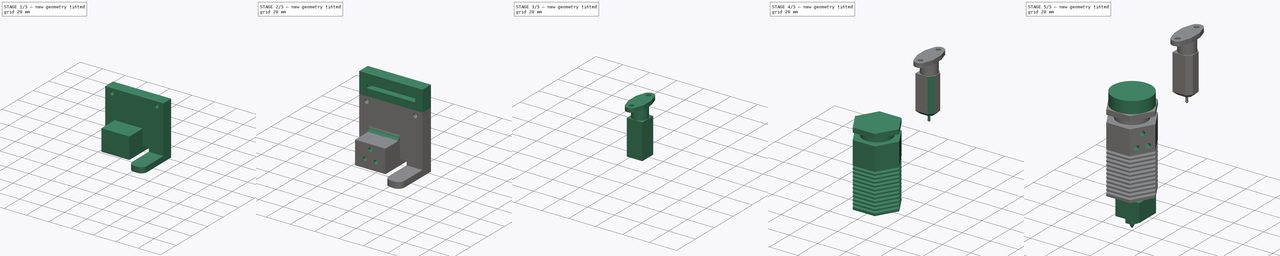
[diagram: build sequence overview — one tinted view per stage of 5, left to right]
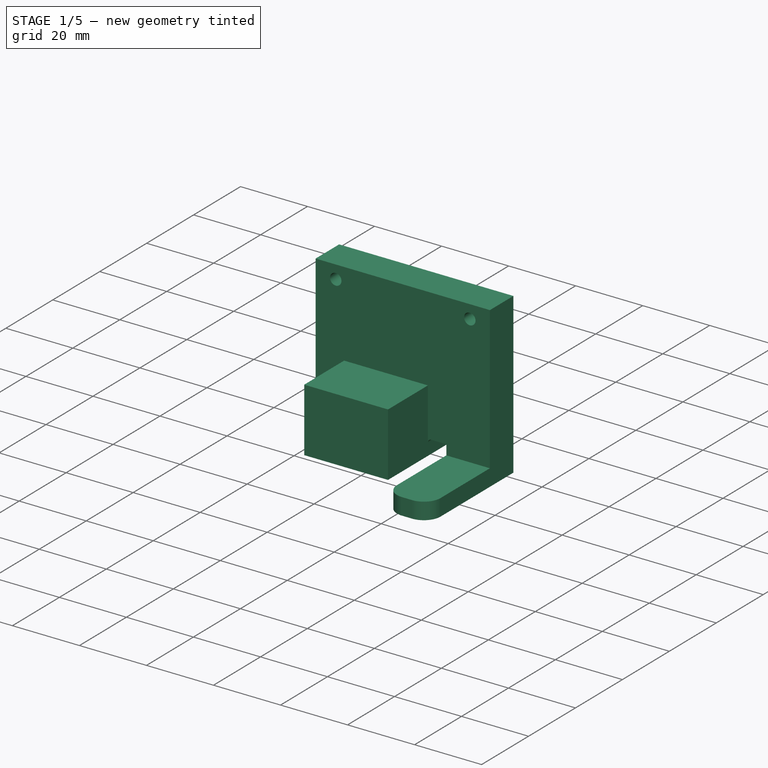
[diagram: stage 1 of 5 — iso view after this stage's code; geometry added in this stage tinted green]
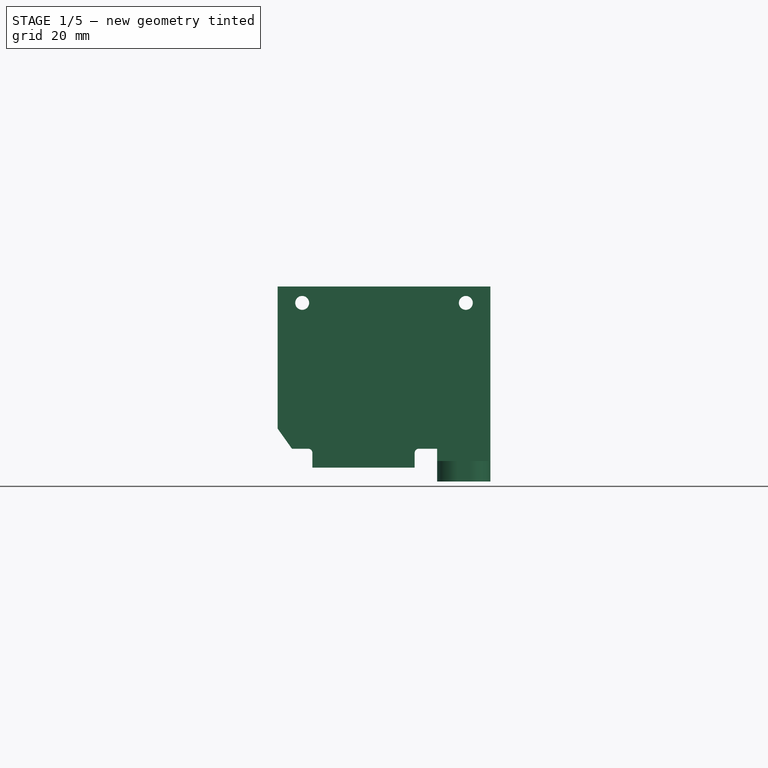
[diagram: stage 1 of 5 — front view after this stage's code; geometry added in this stage tinted green]
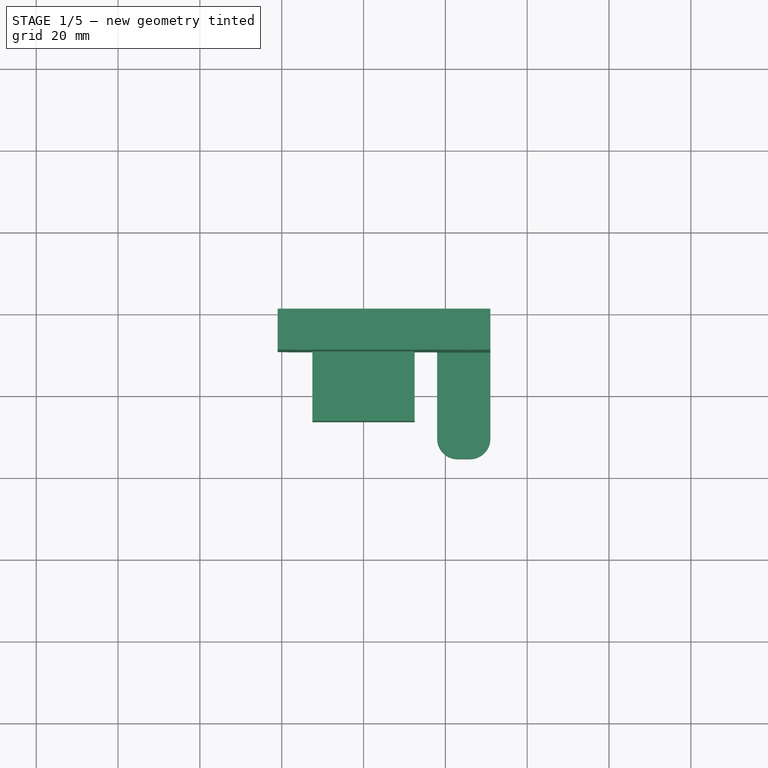
[diagram: stage 1 of 5 — top view after this stage's code; geometry added in this stage tinted green]
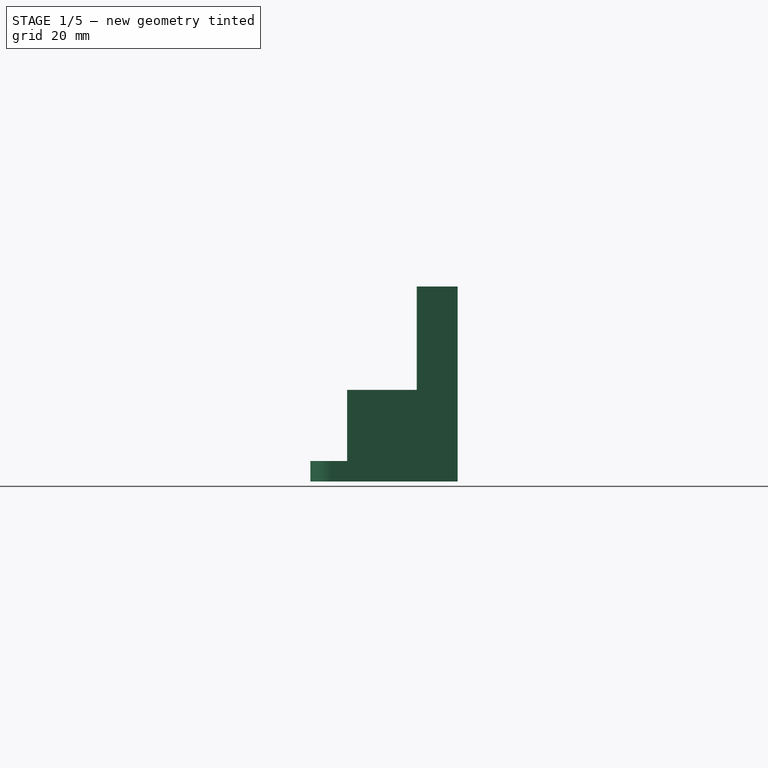
[diagram: stage 1 of 5 — right view after this stage's code; geometry added in this stage tinted green]
FCSTD DOCUMENT  (FreeCAD 0.20R)
Label: hotend
License: All rights reserved
LicenseURL: http://en.wikipedia.org/wiki/All_rights_reserved
objects: Sketcher::SketchObject×28, PartDesign::Pad×15, PartDesign::Pocket×11, PartDesign::Fillet×4, PartDesign::Body×3, PartDesign::Chamfer×3, PartDesign::LinearPattern×2, PartDesign::Revolution×2, Part::Feature×2, PartDesign::ShapeBinder×2, PartDesign::SubShapeBinder×1, PartDesign::Point×1, PartDesign::Plane×1
note: 110 computed .brp shape members not serialized (recipe doc carries the construction recipe); baked Part::Feature solids carry a one-line shape summary decoded from their .brp

FEATURE [PartDesign::Body] Body  label="Hotend"
  Group = -> [Sketch,Pad,Sketch001,Pocket,Sketch002,Pocket001,LinearPattern,Sketch003,Pocket002,Sketch004,Sketch005,Pocket003,Pocket004,Sketch006,Pad001,Sketch007,Pad002,Sketch008,Pad003,Sketch009,Revolution,Sketch010,Pad004]
  Origin = -> Origin
  Placement = pos=(0,0,74.4) rot=(0,0,1;0rad)
  Tip = -> Pad004
FEATURE [Part::Feature] Body001  label="Carriage"
  Placement = pos=(5,40.65,64.65) rot=(0,0.707107,0.707107;3.14159rad)
  shape: bbox 54.15 x 20 x 85.15 mm, 245 faces (baked)
FEATURE [PartDesign::ShapeBinder] ShapeBinder
  Placement = pos=(5,40.65,64.65) rot=(0,0.707107,0.707107;3.14159rad)
  Support = -> [Body001]
  TraceSupport = false
FEATURE [Sketcher::SketchObject] Sketch011
  ExternalGeometry = -> [ShapeBinder]
  FullyConstrained = true
  MapMode = 5
  Placement = pos=(5,40.65,64.65) rot=(0,-0.707107,0.707107;3.14159rad)
  Support = -> [ShapeBinder]
  sketch-geometry (6):
    g0: LineSegment StartX=-26 StartY=-27 StartZ=0 EndX=-26 EndY=9.15 EndZ=0
    g1: LineSegment StartX=-26 StartY=9.15 StartZ=0 EndX=-22.5 EndY=12.65 EndZ=0
    g2: LineSegment StartX=-22.5 StartY=12.65 StartZ=0 EndX=22.5 EndY=12.65 EndZ=0
    g3: LineSegment StartX=22.5 StartY=12.65 StartZ=0 EndX=26 EndY=7.72233 EndZ=0
    g4: LineSegment StartX=26 StartY=7.72233 StartZ=0 EndX=26 EndY=-27 EndZ=0
    g5: LineSegment StartX=26 StartY=-27 StartZ=0 EndX=-26 EndY=-27 EndZ=0
  constraints (12):
    c: Coincident(g-4,g0)
    c: Coincident(g0,g-4)
    c: Coincident(g0,g1)
    c: Coincident(g1,g-3)
    c: Coincident(g1,g2)
    c: Coincident(g2,g-3)
    c: Coincident(g2,g3)
    c: Coincident(g3,g-5)
    c: Coincident(g3,g4)
    c: Coincident(g4,g-5)
    c: Coincident(g4,g5)
    c: Coincident(g5,g0)
FEATURE [PartDesign::Pad] Pad005
  Direction = (1,1,1)
  Length = 10
  Length2 = 100
  Placement = pos=(5,40.65,64.65) rot=(0,0.707107,0.707107;3.14159rad)
  Profile = -> Sketch011
  Type = 0
FEATURE [Sketcher::SketchObject] Sketch012
  ExternalGeometry = -> [ShapeBinder]
  FullyConstrained = true
  MapMode = 5
  Placement = pos=(5,40.65,64.65) rot=(0,0.707107,0.707107;3.14159rad)
  Support = -> [Pad005]
  sketch-geometry (2):
    g0: Circle CenterX=-20 CenterY=23 CenterZ=0 NormalX=0 NormalY=0 NormalZ=1 AngleXU=0 Radius=1.7
    g1: Circle CenterX=20 CenterY=23 CenterZ=0 NormalX=0 NormalY=0 NormalZ=1 AngleXU=0 Radius=1.7
  constraints (4):
    c: Coincident(g0,g-3)
    c: Coincident(g1,g-4)
    c: Equal(g-4,g1)
    c: Equal(g1,g0)
FEATURE [PartDesign::Pocket] Pocket005
  BaseFeature = -> Pad005
  Direction = (1,1,1)
  Length = 5
  Length2 = 100
  Placement = pos=(5,40.65,64.65) rot=(0,0.707107,0.707107;3.14159rad)
  Profile = -> Sketch012
  Type = 1
FEATURE [Sketcher::SketchObject] Sketch013
  ExternalGeometry = -> [Pocket005]
  FullyConstrained = true
  MapMode = 5
  Placement = pos=(5,30.65,64.65) rot=(0,-0.707107,0.707107;3.14159rad)
  Support = -> [Pocket005]
  sketch-geometry (4):
    g0: LineSegment StartX=-26 StartY=20.65 StartZ=0 EndX=-13 EndY=20.65 EndZ=0
    g1: LineSegment StartX=-13 StartY=20.65 StartZ=0 EndX=-13 EndY=9.15 EndZ=0
    g2: LineSegment StartX=-13 StartY=9.15 StartZ=0 EndX=-26 EndY=9.15 EndZ=0
    g3: LineSegment StartX=-26 StartY=9.15 StartZ=0 EndX=-26 EndY=20.65 EndZ=0
  constraints (11):
    c: Coincident(g0,g1)
    c: Coincident(g1,g2)
    c: Coincident(g2,g3)
    c: Coincident(g3,g0)
    c: Horizontal(g0)
    c: Horizontal(g2)
    c: Vertical(g1)
    c: Vertical(g3)
    c: DistanceX(g2,g2) = 13
    c: Distance(g0,g-4) = 8
    c: Coincident(g-3,g2)
FEATURE [PartDesign::Pad] Pad006
  BaseFeature = -> Pocket005
  Direction = (1,1,1)
  Length = 10
  Length2 = 100
  Placement = pos=(5,40.65,64.65) rot=(0,0.707107,0.707107;3.14159rad)
  Profile = -> Sketch013
  Refine = true
  Reversed = true
  Type = 0
FEATURE [Sketcher::SketchObject] Sketch014
  ExternalGeometry = -> [Pad006]
  FullyConstrained = true
  MapMode = 5
  Placement = pos=(5,30.65,64.65) rot=(0,-0.707107,0.707107;3.14159rad)
  Support = -> [Pad006]
  sketch-geometry (4):
    g0: LineSegment StartX=-26 StartY=20.65 StartZ=0 EndX=-13 EndY=20.65 EndZ=0
    g1: LineSegment StartX=-13 StartY=20.65 StartZ=0 EndX=-13 EndY=15.65 EndZ=0
    g2: LineSegment StartX=-13 StartY=15.65 StartZ=0 EndX=-26 EndY=15.65 EndZ=0
    g3: LineSegment StartX=-26 StartY=15.65 StartZ=0 EndX=-26 EndY=20.65 EndZ=0
  constraints (11):
    c: Coincident(g0,g1)
    c: Coincident(g1,g2)
    c: Coincident(g2,g3)
    c: Coincident(g3,g0)
    c: Horizontal(g0)
    c: Horizontal(g2)
    c: Vertical(g1)
    c: Vertical(g3)
    c: Coincident(g0,g-3)
    c: PointOnObject(g1,g-4)
    c: DistanceY(g3,g3) = 5
FEATURE [PartDesign::Pad] Pad007
  BaseFeature = -> Pad006
  Direction = (1,1,1)
  Length = 26
  Length2 = 100
  Placement = pos=(5,40.65,64.65) rot=(0,0.707107,0.707107;3.14159rad)
  Profile = -> Sketch014
  Type = 0
FEATURE [Part::Feature] Body003  label="Hotend001"
  Placement = pos=(0,0,74.4) rot=(0,0,1;0rad)
  shape: bbox 31.18 x 27 x 82.4 mm, 152 faces (baked)
FEATURE [PartDesign::ShapeBinder] ShapeBinder001
  Placement = pos=(0,0,74.4) rot=(0,0,1;0rad)
  Support = -> [Body003]
  TraceSupport = false
FEATURE [Sketcher::SketchObject] Sketch015
  ExternalGeometry = -> [Pad007,ShapeBinder001]
  FullyConstrained = true
  MapMode = 5
  Placement = pos=(5,30.65,64.65) rot=(0,-0.707107,0.707107;3.14159rad)
  Support = -> [Pad007]
  sketch-geometry (5):
    g0: LineSegment StartX=-7.5 StartY=17.25 StartZ=0 EndX=17.5 EndY=17.25 EndZ=0
    g1: LineSegment StartX=17.5 StartY=17.25 StartZ=0 EndX=17.5 EndY=-1.75 EndZ=0
    g2: LineSegment StartX=17.5 StartY=-1.75 StartZ=0 EndX=-7.5 EndY=-1.75 EndZ=0
    g3: LineSegment StartX=-7.5 StartY=-1.75 StartZ=0 EndX=-7.5 EndY=17.25 EndZ=0
    g4: LineSegment StartX=5 StartY=14.6 StartZ=0 EndX=5 EndY=-1.75 EndZ=0
  constraints (14):
    c: Coincident(g0,g1)
    c: Coincident(g1,g2)
    c: Coincident(g2,g3)
    c: Coincident(g3,g0)
    c: Horizontal(g2)
    c: Vertical(g1)
    c: Vertical(g3)
    c: PointOnObject(g-5,g2)
    c: PointOnObject(g4,g-4)
    c: PointOnObject(g4,g2)
    c: Symmetric(g-4,g-4,g4)
    c: Symmetric(g0,g0,g4)
    c: DistanceX(g0,g0) = 25
    c: DistanceY(g1,g1) = 19
FEATURE [PartDesign::Pad] Pad008
  BaseFeature = -> Pad007
  Direction = (1,1,1)
  Length = 17
  Length2 = 10
  Placement = pos=(5,40.65,64.65) rot=(0,0.707107,0.707107;3.14159rad)
  Profile = -> Sketch015
  Type = 4
FEATURE [PartDesign::Fillet] Fillet
  Base = -> Pad008 [Edge38,Edge40]
  BaseFeature = -> Pad008
  Placement = pos=(5,40.65,64.65) rot=(0,0.707107,0.707107;3.14159rad)
  Radius = 1
  SupportTransform = false
FEATURE [Sketcher::SketchObject] Sketch016
  ExternalGeometry = -> [ShapeBinder001]
  FullyConstrained = true
  MapMode = 5
  Placement = pos=(5,13.65,64.65) rot=(0,-0.707107,0.707107;3.14159rad)
  sketch-geometry (3):
    g0: Circle CenterX=0.5 CenterY=10.45 CenterZ=0 NormalX=0 NormalY=0 NormalZ=1 AngleXU=0 Radius=1.6
    g1: Circle CenterX=9.5 CenterY=10.45 CenterZ=0 NormalX=0 NormalY=0 NormalZ=1 AngleXU=0 Radius=1.6
    g2: Circle CenterX=5 CenterY=2.45 CenterZ=0 NormalX=0 NormalY=0 NormalZ=1 AngleXU=0 Radius=1.6
  constraints (6):
    c: Coincident(g0,g-3)
    c: Coincident(g1,g-4)
    c: Coincident(g2,g-5)
    c: Equal(g2,g1)
    c: Equal(g1,g0)
    c: Equal(g-4,g1)
FEATURE [Sketcher::SketchObject] Sketch017
  FullyConstrained = false
  MapMode = 5
  Placement = pos=(5,40.65,64.65) rot=(0,0.707107,0.707107;3.14159rad)
  sketch-geometry (3):
    g0: Circle CenterX=5 CenterY=-2.45 CenterZ=0 NormalX=0 NormalY=0 NormalZ=1 AngleXU=0 Radius=3.25
    g1: Circle CenterX=9.5 CenterY=-10.45 CenterZ=0 NormalX=0 NormalY=0 NormalZ=1 AngleXU=0 Radius=3.25
    g2: Circle CenterX=0.5 CenterY=-10.45 CenterZ=0 NormalX=0 NormalY=0 NormalZ=1 AngleXU=0 Radius=3.25
  constraints (3):
    c: Equal(g0,g1)
    c: Equal(g1,g2)
    c: Radius(g0) = 3.25
FEATURE [PartDesign::Fillet] Fillet001
  Base = -> Fillet [Edge68,Edge64]
  BaseFeature = -> Fillet
  Placement = pos=(5,40.65,64.65) rot=(0,0.707107,0.707107;3.14159rad)
  Radius = 5
  SupportTransform = false
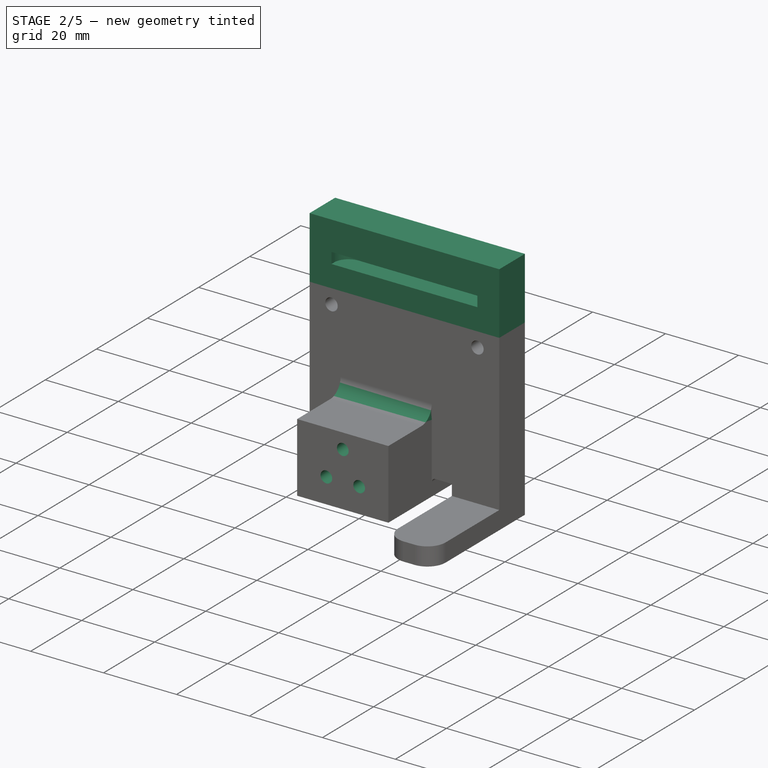
[diagram: stage 2 of 5 — iso view after this stage's code; geometry added in this stage tinted green]
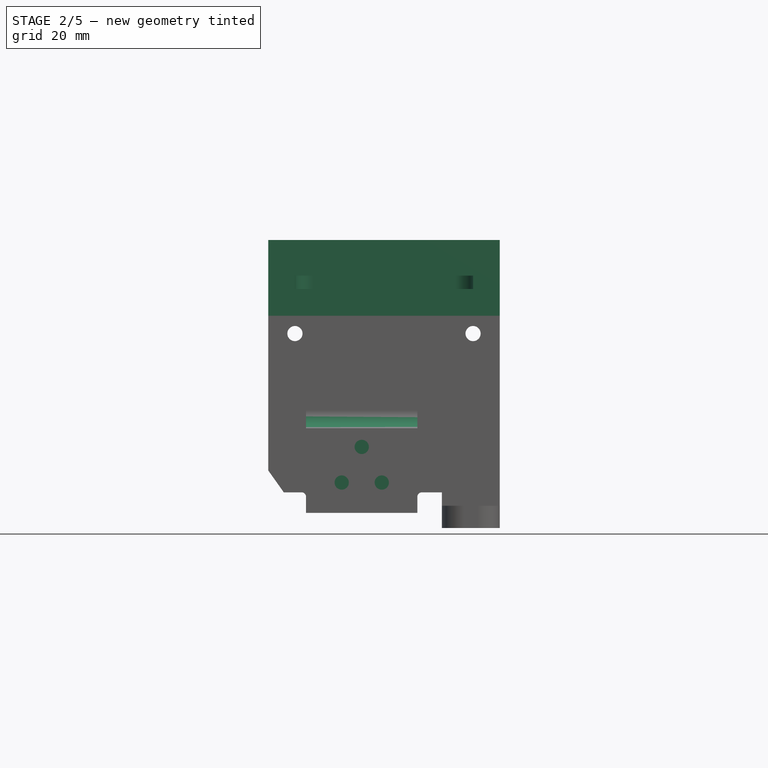
[diagram: stage 2 of 5 — front view after this stage's code; geometry added in this stage tinted green]
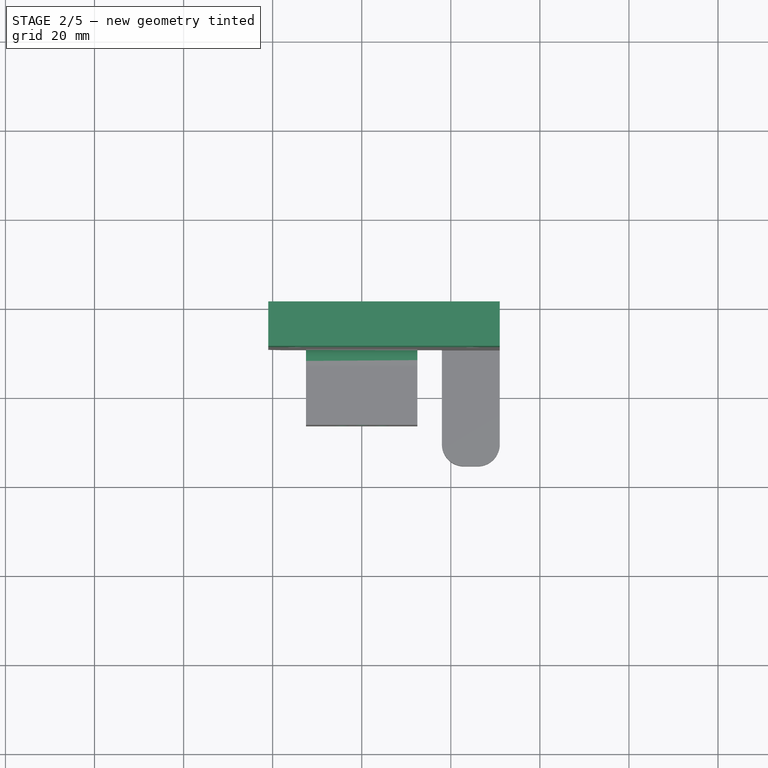
[diagram: stage 2 of 5 — top view after this stage's code; geometry added in this stage tinted green]
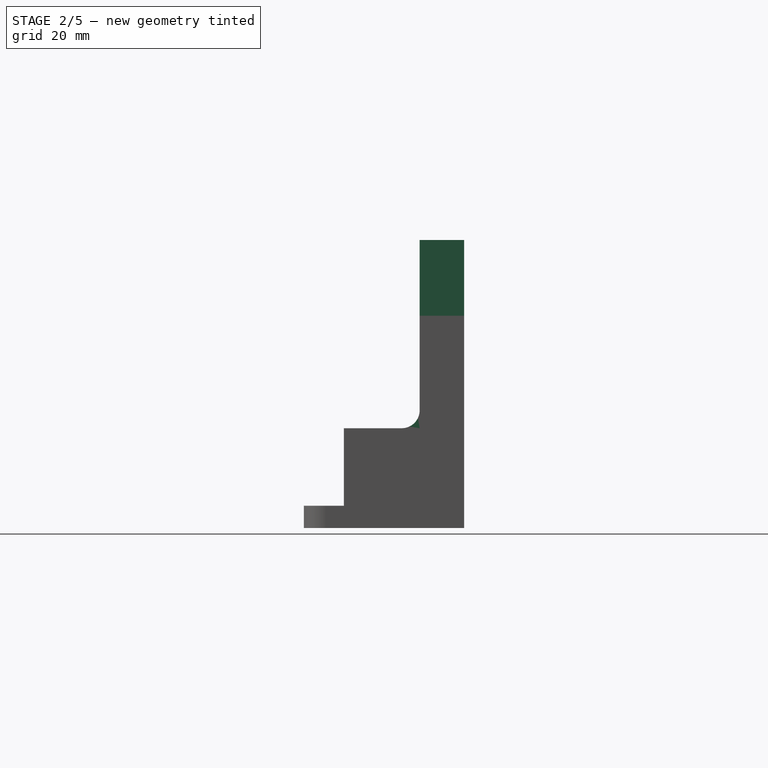
[diagram: stage 2 of 5 — right view after this stage's code; geometry added in this stage tinted green]
FEATURE [PartDesign::Pocket] Pocket006
  BaseFeature = -> Fillet001
  Direction = (1,1,1)
  Length = 5
  Length2 = 100
  Placement = pos=(5,40.65,64.65) rot=(0,0.707107,0.707107;3.14159rad)
  Profile = -> Sketch016
  Type = 1
FEATURE [PartDesign::Pocket] Pocket007
  BaseFeature = -> Pocket006
  Direction = (1,1,1)
  Length = 20
  Length2 = 100
  Placement = pos=(5,40.65,64.65) rot=(0,0.707107,0.707107;3.14159rad)
  Profile = -> Sketch017
  Refine = true
  Type = 0
FEATURE [Sketcher::SketchObject] Sketch018
  ExternalGeometry = -> [Pocket007]
  FullyConstrained = true
  MapMode = 5
  Placement = pos=(5,40.65,48) rot=(0,0,1;0rad)
  sketch-geometry (3):
    g0: Circle CenterX=19.5 CenterY=-14 CenterZ=0 NormalX=0 NormalY=0 NormalZ=1 AngleXU=0 Radius=1.6
    g1: Circle CenterX=19.5 CenterY=-32 CenterZ=0 NormalX=0 NormalY=0 NormalZ=1 AngleXU=0 Radius=1.6
    g2: LineSegment StartX=19.5 StartY=-36 StartZ=0 EndX=19.5 EndY=-10 EndZ=0
  constraints (9):
    c: PointOnObject(g1,g2)
    c: PointOnObject(g0,g2)
    c: Distance(g0,g1) = 18
    c: Equal(g0,g1)
    c: PointOnObject(g2,g-3)
    c: Symmetric(g-3,g-3,g2)
    c: PointOnObject(g2,g-4)
    c: Radius(g1) = 1.6
    c: Distance(g1,g-3) = 4
FEATURE [PartDesign::Pocket] Pocket008
  BaseFeature = -> Pocket007
  Direction = (1,1,1)
  Length = 5
  Length2 = 100
  Placement = pos=(5,40.65,64.65) rot=(0,0.707107,0.707107;3.14159rad)
  Profile = -> Sketch018
  Type = 1
FEATURE [PartDesign::Fillet] Fillet002
  Base = -> Pocket008 [Edge75]
  BaseFeature = -> Pocket008
  Placement = pos=(5,40.65,64.65) rot=(0,0.707107,0.707107;3.14159rad)
  Radius = 4
  SupportTransform = false
FEATURE [Sketcher::SketchObject] Sketch019
  ExternalGeometry = -> [Fillet002]
  FullyConstrained = true
  MapMode = 5
  Placement = pos=(5,20.65,64.65) rot=(0,0.707107,0.707107;3.14159rad)
  Support = -> [Fillet002]
  sketch-geometry (3):
    g0: Circle CenterX=9.5 CenterY=-10.45 CenterZ=0 NormalX=0 NormalY=0 NormalZ=1 AngleXU=0 Radius=1.6
    g1: Circle CenterX=5 CenterY=-2.45 CenterZ=0 NormalX=0 NormalY=0 NormalZ=1 AngleXU=0 Radius=1.6
    g2: Circle CenterX=0.5 CenterY=-10.45 CenterZ=0 NormalX=0 NormalY=0 NormalZ=1 AngleXU=0 Radius=1.6
  constraints (6):
    c: Coincident(g0,g-3)
    c: Coincident(g1,g-4)
    c: Coincident(g2,g-5)
    c: Equal(g0,g-3)
    c: Equal(g-3,g1)
    c: Equal(g1,g2)
FEATURE [PartDesign::Pad] Pad009
  BaseFeature = -> Fillet002
  Direction = (1,1,1)
  Length = 0.2
  Length2 = 100
  Placement = pos=(5,40.65,64.65) rot=(0,0.707107,0.707107;3.14159rad)
  Profile = -> Sketch019
  Reversed = true
  Type = 0
FEATURE [PartDesign::Body] Body004  label="bltouch"
  Group = -> [Sketch020,Binder,Pad010,Sketch021,Pad011,Sketch022,Pad012,Chamfer,Chamfer001,DatumPoint,DatumPlane,Sketch023,Revolution001]
  Origin = -> Origin002
  Tip = -> Revolution001
FEATURE [Sketcher::SketchObject] Sketch024
  ExternalGeometry = -> [Pad009]
  FullyConstrained = true
  MapMode = 5
  Placement = pos=(5,40.65,91.65) rot=(0,0,1;0rad)
  Support = -> [Pad009]
  sketch-geometry (4):
    g0: LineSegment StartX=-26 StartY=-2.13e-14 StartZ=0 EndX=26 EndY=-2.13e-14 EndZ=0
    g1: LineSegment StartX=26 StartY=-2.13e-14 StartZ=0 EndX=26 EndY=-10 EndZ=0
    g2: LineSegment StartX=26 StartY=-10 StartZ=0 EndX=-26 EndY=-10 EndZ=0
    g3: LineSegment StartX=-26 StartY=-10 StartZ=0 EndX=-26 EndY=-2.13e-14 EndZ=0
  constraints (10):
    c: Coincident(g0,g1)
    c: Coincident(g1,g2)
    c: Coincident(g2,g3)
    c: Coincident(g3,g0)
    c: Horizontal(g0)
    c: Horizontal(g2)
    c: Vertical(g1)
    c: Vertical(g3)
    c: Coincident(g0,g-3)
    c: Coincident(g1,g-5)
FEATURE [PartDesign::Pad] Pad013
  BaseFeature = -> Pad009
  Direction = (1,1,1)
  Length = 17
  Length2 = 100
  Placement = pos=(5,40.65,64.65) rot=(0,0.707107,0.707107;3.14159rad)
  Profile = -> Sketch024
  Type = 0
FEATURE [Sketcher::SketchObject] Sketch025
  ExternalGeometry = -> [Pad013]
  FullyConstrained = true
  MapMode = 5
  Placement = pos=(5,30.65,64.65) rot=(0,-0.707107,0.707107;3.14159rad)
  Support = -> [Pad013]
  sketch-geometry (4):
    g0: LineSegment StartX=-20 StartY=-33 StartZ=0 EndX=20 EndY=-33 EndZ=0
    g1: LineSegment StartX=20 StartY=-33 StartZ=0 EndX=20 EndY=-36 EndZ=0
    g2: LineSegment StartX=20 StartY=-36 StartZ=0 EndX=-20 EndY=-36 EndZ=0
    g3: LineSegment StartX=-20 StartY=-36 StartZ=0 EndX=-20 EndY=-33 EndZ=0
  constraints (11):
    c: Coincident(g0,g1)
    c: Coincident(g1,g2)
    c: Coincident(g2,g3)
    c: Coincident(g3,g0)
    c: Horizontal(g2)
    c: Vertical(g1)
    c: Vertical(g3)
    c: Symmetric(g0,g0,g-2)
    c: DistanceY(g1,g1) = 3
    c: Distance(g1,g-3) = 8
    c: DistanceX(g0,g0) = 40
FEATURE [PartDesign::Pocket] Pocket009
  BaseFeature = -> Pad013
  Direction = (1,1,1)
  Length = 5
  Length2 = 100
  Placement = pos=(5,40.65,64.65) rot=(0,0.707107,0.707107;3.14159rad)
  Profile = -> Sketch025
  Type = 0
FEATURE [PartDesign::Fillet] Fillet003
  Base = -> Pocket009 [Edge107,Edge111]
  BaseFeature = -> Pocket009
  Placement = pos=(5,40.65,64.65) rot=(0,0.707107,0.707107;3.14159rad)
  Radius = 4
  SupportTransform = false
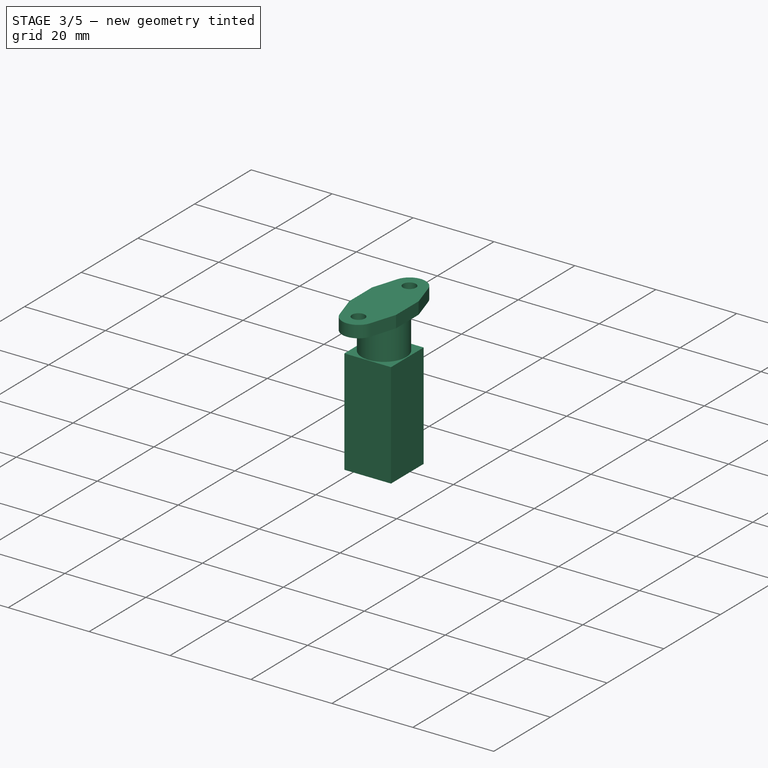
[diagram: stage 3 of 5 — iso view after this stage's code; geometry added in this stage tinted green]
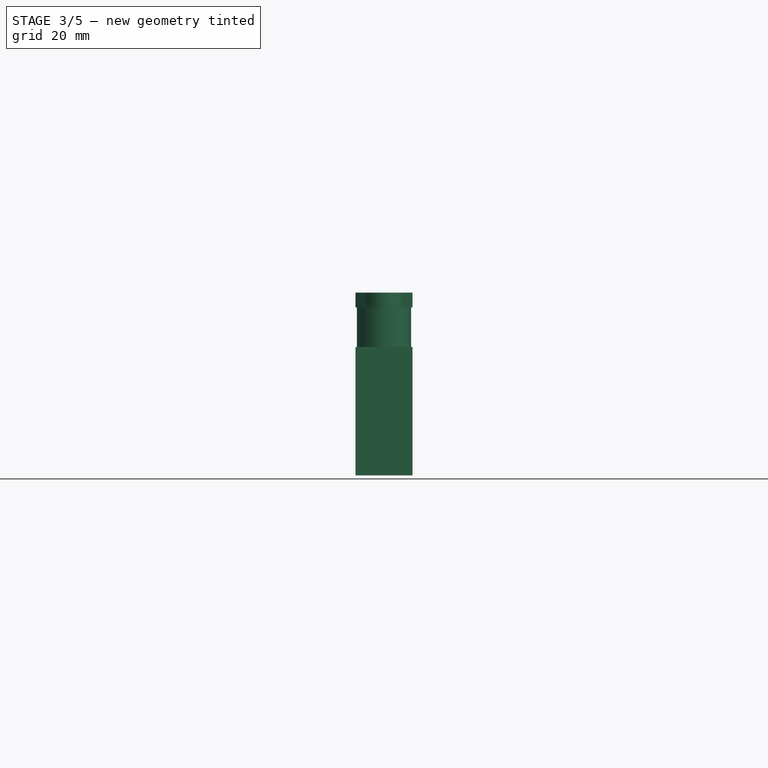
[diagram: stage 3 of 5 — front view after this stage's code; geometry added in this stage tinted green]
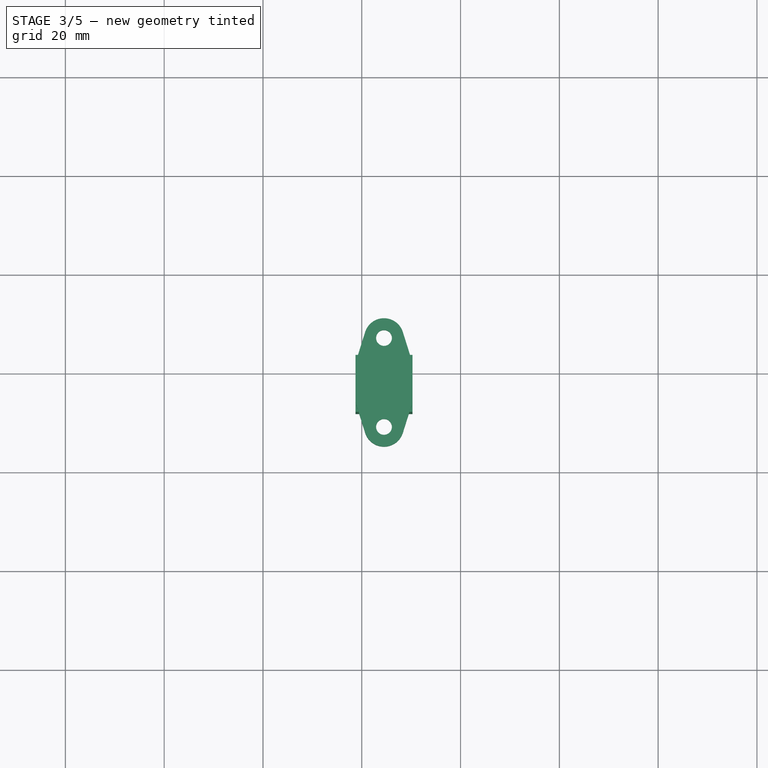
[diagram: stage 3 of 5 — top view after this stage's code; geometry added in this stage tinted green]
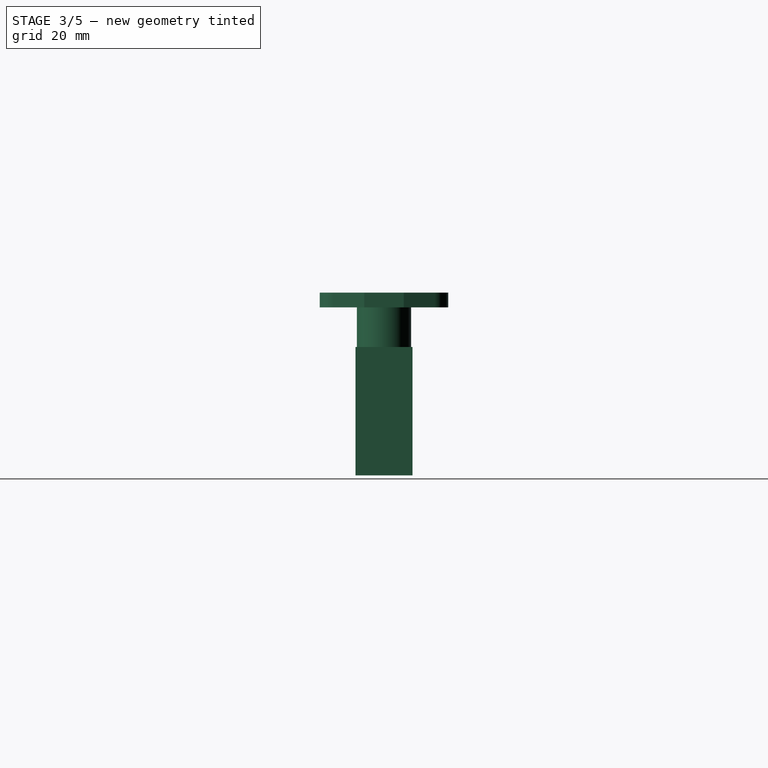
[diagram: stage 3 of 5 — right view after this stage's code; geometry added in this stage tinted green]
FEATURE [PartDesign::SubShapeBinder] Binder
  BindMode = 0
  ClaimChildren = false
  Context = -> Body004 [Binder.]
  Fuse = false
  MakeFace = true
  PartialLoad = false
  Relative = true
  Support = -> [Body002[Pad009.Face24]]
  _Version = 2
FEATURE [Sketcher::SketchObject] Sketch020
  ExternalGeometry = -> [Binder]
  FullyConstrained = false
  MapMode = 5
  Placement = pos=(3e-14,1.35e-13,44) rot=(1,0,0;3.14159rad)
  Support = -> [Binder]
  sketch-geometry (12):
    g0: Circle CenterX=24.5 CenterY=-26.65 CenterZ=0 NormalX=0 NormalY=0 NormalZ=1 AngleXU=0 Radius=1.6
    g1: Circle CenterX=24.5 CenterY=-8.65 CenterZ=0 NormalX=0 NormalY=0 NormalZ=1 AngleXU=0 Radius=1.6
    g2: LineSegment StartX=24.5 StartY=-26.65 StartZ=0 EndX=24.5 EndY=-8.65 EndZ=0
    g3: LineSegment StartX=18 StartY=-17.65 StartZ=0 EndX=31 EndY=-17.65 EndZ=0
    g4: LineSegment StartX=18.735 StartY=-13.65 StartZ=0 EndX=18.735 EndY=-21.65 EndZ=0
    g5: LineSegment StartX=30.265 StartY=-13.65 StartZ=0 EndX=30.265 EndY=-21.65 EndZ=0
    g6: ArcOfCircle CenterX=24.5 CenterY=-26.65 CenterZ=0 NormalX=0 NormalY=0 NormalZ=1 AngleXU=0 Radius=4 StartAngle=2.43907 EndAngle=6.98571
    g7: ArcOfCircle CenterX=24.5 CenterY=-8.65 CenterZ=0 NormalX=0 NormalY=0 NormalZ=1 AngleXU=0 Radius=4 StartAngle=5.58066 EndAngle=10.1273
    g8: LineSegment StartX=30.265 StartY=-13.65 StartZ=0 EndX=21.4472 EndY=-24.0654 EndZ=0
    g9: LineSegment StartX=27.5528 StartY=-24.0654 StartZ=0 EndX=18.735 EndY=-13.65 EndZ=0
    g10: LineSegment StartX=30.265 StartY=-21.65 StartZ=0 EndX=21.4472 EndY=-11.2346 EndZ=0
    g11: LineSegment StartX=27.5528 StartY=-11.2346 StartZ=0 EndX=18.735 EndY=-21.65 EndZ=0
  constraints (26):
    c: Equal(g0,g1)
    c: Coincident(g2,g0)
    c: Coincident(g2,g1)
    c: Symmetric(g1,g0,g3)
    c: Vertical(g4)
    c: Equal(g5,g4)
    c: Symmetric(g5,g4,g2)
    c: Symmetric(g5,g5,g3)
    c: DistanceY(g5,g5) = 8
    c: Distance(g4,g5) = 11.53
    c: Coincident(g6,g0)
    c: Coincident(g7,g1)
    c: Equal(g7,g6)
    c: Radius(g6) = 4
    c: Coincident(g8,g5)
    c: Coincident(g9,g4)
    c: Tangent(g8,g6) = -1.5708
    c: Tangent(g9,g6) = -1.5708
    c: Coincident(g10,g5)
    c: Coincident(g11,g4)
    c: Tangent(g10,g7) = 1.5708
    c: Tangent(g11,g7) = 1.5708
    c: Coincident(g1,g-4)
    c: Coincident(g0,g-3)
    c: PointOnObject(g3,g-6)
    c: PointOnObject(g3,g-5)
FEATURE [PartDesign::Pad] Pad010
  Direction = (1,1,1)
  Length = 3
  Length2 = 100
  Profile = -> Sketch020
  Type = 0
FEATURE [Sketcher::SketchObject] Sketch021
  ExternalGeometry = -> [Pad010]
  FullyConstrained = true
  MapMode = 5
  Placement = pos=(0,1.488e-13,40) rot=(1,0,0;3.14159rad)
  Support = -> [Pad010]
  sketch-geometry (3):
    g0: LineSegment StartX=18.735 StartY=-17.65 StartZ=0 EndX=30.265 EndY=-17.65 EndZ=0
    g1: LineSegment StartX=24.5 StartY=-8.65 StartZ=0 EndX=24.5 EndY=-26.65 EndZ=0
    g2: Circle CenterX=24.5 CenterY=-17.65 CenterZ=0 NormalX=0 NormalY=0 NormalZ=1 AngleXU=0 Radius=5.5
  constraints (8):
    c: PointOnObject(g0,g-4)
    c: PointOnObject(g0,g-3)
    c: Symmetric(g-4,g-4,g0)
    c: Coincident(g1,g-5)
    c: Coincident(g1,g-6)
    c: PointOnObject(g2,g1)
    c: PointOnObject(g2,g0)
    c: Radius(g2) = 5.5
FEATURE [PartDesign::Pad] Pad011
  BaseFeature = -> Pad010
  Direction = (1,1,1)
  Length = 8
  Length2 = 100
  Profile = -> Sketch021
  Type = 0
FEATURE [Sketcher::SketchObject] Sketch022
  ExternalGeometry = -> [Pad011]
  FullyConstrained = true
  MapMode = 5
  Placement = pos=(-1.38e-14,1.194e-13,32) rot=(1,0,0;3.14159rad)
  Support = -> [Pad011]
  sketch-geometry (6):
    g0: LineSegment StartX=18.735 StartY=-11.885 StartZ=0 EndX=30.265 EndY=-11.885 EndZ=0
    g1: LineSegment StartX=30.265 StartY=-11.885 StartZ=0 EndX=30.265 EndY=-23.415 EndZ=0
    g2: LineSegment StartX=30.265 StartY=-23.415 StartZ=0 EndX=18.735 EndY=-23.415 EndZ=0
    g3: LineSegment StartX=18.735 StartY=-23.415 StartZ=0 EndX=18.735 EndY=-11.885 EndZ=0
    g4: LineSegment StartX=24.5 StartY=-17.65 StartZ=0 EndX=24.5 EndY=-11.885 EndZ=0
    g5: LineSegment StartX=24.5 StartY=-17.65 StartZ=0 EndX=24.5 EndY=-23.415 EndZ=0
  constraints (18):
    c: Coincident(g0,g1)
    c: Coincident(g1,g2)
    c: Coincident(g2,g3)
    c: Coincident(g3,g0)
    c: Horizontal(g0)
    c: Horizontal(g2)
    c: Vertical(g1)
    c: Vertical(g3)
    c: PointOnObject(g-4,g3)
    c: PointOnObject(g-5,g1)
    c: Equal(g1,g0)
    c: Coincident(g4,g-3)
    c: PointOnObject(g4,g0)
    c: Vertical(g4)
    c: Coincident(g5,g4)
    c: PointOnObject(g5,g2)
    c: Vertical(g5)
    c: Equal(g4,g5)
FEATURE [PartDesign::Pad] Pad012
  BaseFeature = -> Pad011
  Direction = (1,1,1)
  Length = 26
  Length2 = 100
  Profile = -> Sketch022
  Type = 0
FEATURE [PartDesign::Chamfer] Chamfer002
  Angle = 45
  Base = -> Fillet003 [Edge43,Edge25]
  BaseFeature = -> Fillet003
  ChamferType = 0
  FlipDirection = false
  Placement = pos=(5,40.65,64.65) rot=(0,0.707107,0.707107;3.14159rad)
  Size = 3
  Size2 = 1
  SupportTransform = false
FEATURE [Sketcher::SketchObject] Sketch026
  ExternalGeometry = -> [Chamfer002]
  FullyConstrained = false
  MapMode = 5
  Placement = pos=(5,30.65,64.65) rot=(0,-0.707107,0.707107;3.14159rad)
  Support = -> [Chamfer002]
  sketch-geometry (4):
    g0: LineSegment StartX=-14.0255 StartY=-33 StartZ=0 EndX=-10.0255 EndY=-33 EndZ=0
    g1: LineSegment StartX=-10.0255 StartY=-33 StartZ=0 EndX=-10.0255 EndY=-36 EndZ=0
    g2: LineSegment StartX=-10.0255 StartY=-36 StartZ=0 EndX=-14.0255 EndY=-36 EndZ=0
    g3: LineSegment StartX=-14.0255 StartY=-36 StartZ=0 EndX=-14.0255 EndY=-33 EndZ=0
  constraints (11):
    c: Coincident(g0,g1)
    c: Coincident(g1,g2)
    c: Coincident(g2,g3)
    c: Coincident(g3,g0)
    c: Horizontal(g0)
    c: Horizontal(g2)
    c: Vertical(g1)
    c: Vertical(g3)
    c: PointOnObject(g0,g-3)
    c: PointOnObject(g1,g-4)
    c: DistanceX(g0,g0) = 4
FEATURE [PartDesign::Pad] Pad014
  BaseFeature = -> Chamfer002
  Direction = (1,1,1)
  Length = 2.5
  Length2 = 100
  Placement = pos=(5,40.65,64.65) rot=(0,0.707107,0.707107;3.14159rad)
  Profile = -> Sketch026
  Reversed = true
  Type = 0
FEATURE [PartDesign::LinearPattern] LinearPattern001
  BaseFeature = -> Pad014
  Direction = -> X_Axis001
  Length = 25
  Occurrences = 3
  Originals = -> [Pad014]
  Overlap = 0
  Placement = pos=(5,40.65,64.65) rot=(0,0.707107,0.707107;3.14159rad)
  Reversed = true
FEATURE [Sketcher::SketchObject] Sketch027
  ExternalGeometry = -> [LinearPattern001]
  FullyConstrained = true
  MapMode = 5
  Placement = pos=(5,40.65,48) rot=(0,1,0;3.14159rad)
  Support = -> [LinearPattern001]
  sketch-geometry (2):
    g0: Circle CenterX=-19.5 CenterY=-14 CenterZ=0 NormalX=0 NormalY=0 NormalZ=1 AngleXU=0 Radius=1.6
    g1: Circle CenterX=-19.5 CenterY=-32 CenterZ=0 NormalX=0 NormalY=0 NormalZ=1 AngleXU=0 Radius=1.6
  constraints (4):
    c: Coincident(g0,g-3)
    c: Coincident(g1,g-4)
    c: Equal(g1,g0)
    c: Equal(g0,g-3)
FEATURE [PartDesign::Pocket] Pocket010
  BaseFeature = -> LinearPattern001
  Direction = (-1.5e-15,2.7e-15,1)
  Length = 5
  Length2 = 100
  Placement = pos=(5,40.65,64.65) rot=(0,0.707107,0.707107;3.14159rad)
  Profile = -> Sketch027
  ReferenceAxis = -> Sketch027 [N_Axis]
  Type = 0
FEATURE [PartDesign::Body] Body002  label="Holder"
  Group = -> [ShapeBinder,Sketch011,Pad005,Sketch012,Pocket005,Sketch013,Pad006,Sketch014,Pad007,Sketch015,ShapeBinder001,Pad008,Fillet,Sketch016,Sketch017,Sketch018,Fillet001,Pocket006,Pocket007,Pocket008,Fillet002,Sketch019,Pad009,Sketch024,Pad013,Sketch025,Pocket009,Fillet003,Chamfer002,Sketch026,Pad014,LinearPattern001,Sketch027,Pocket010]
  Origin = -> Origin001
  Tip = -> Pocket010
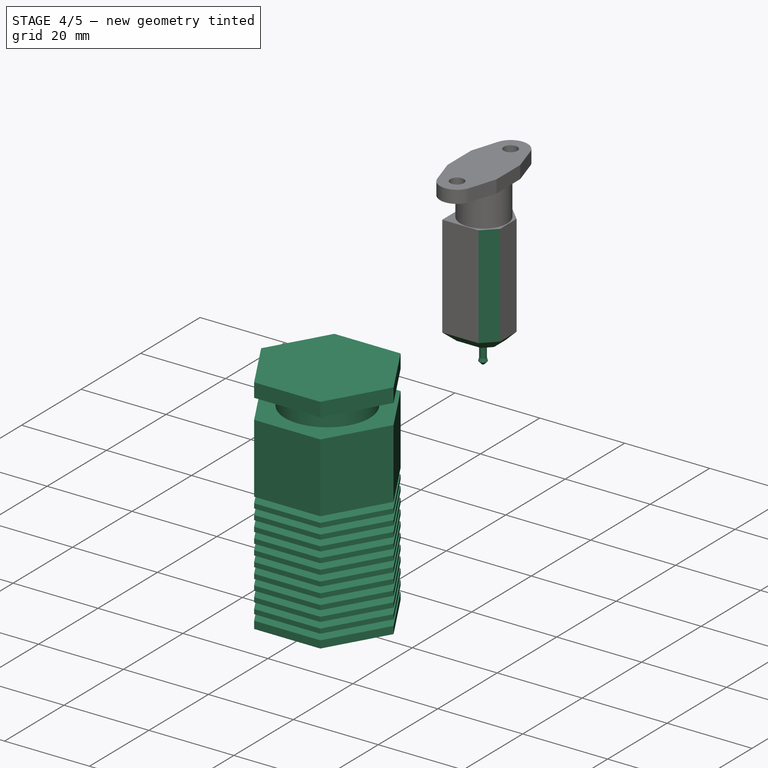
[diagram: stage 4 of 5 — iso view after this stage's code; geometry added in this stage tinted green]
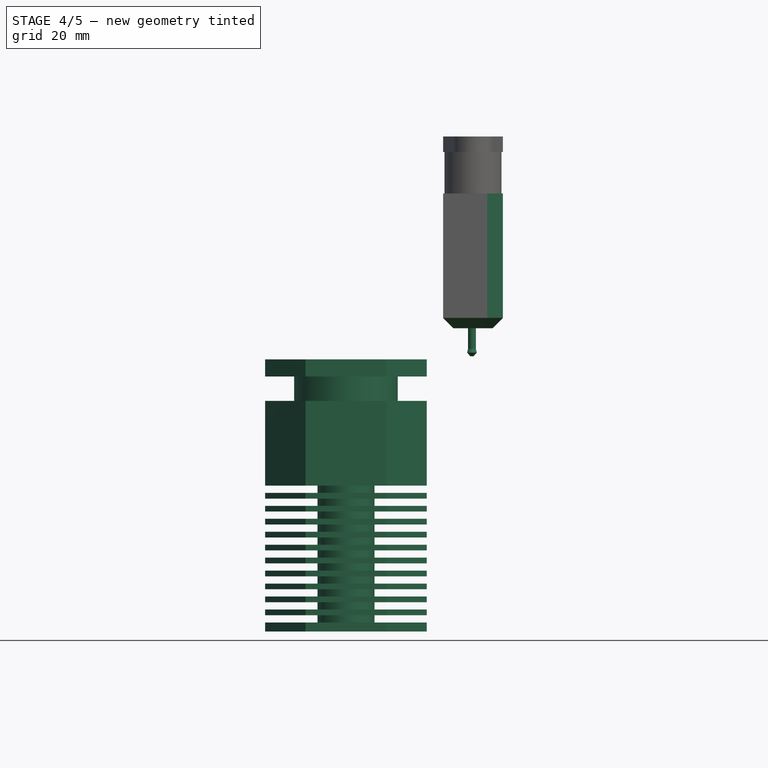
[diagram: stage 4 of 5 — front view after this stage's code; geometry added in this stage tinted green]
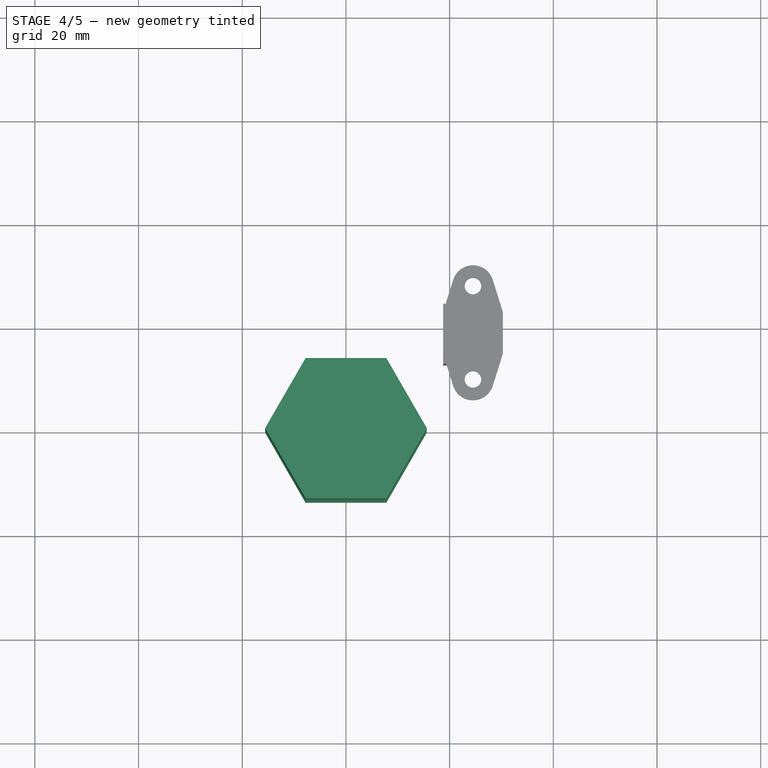
[diagram: stage 4 of 5 — top view after this stage's code; geometry added in this stage tinted green]
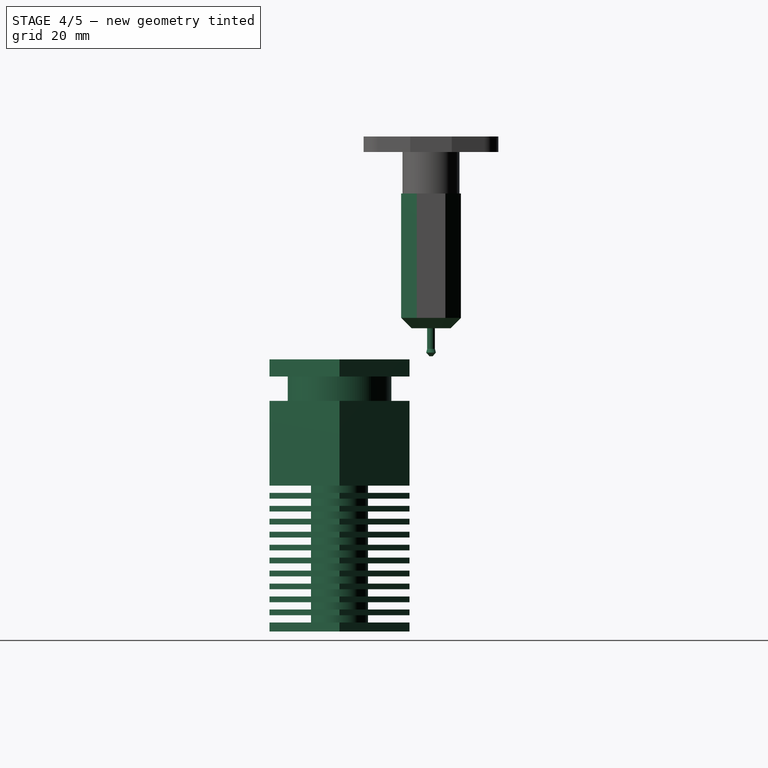
[diagram: stage 4 of 5 — right view after this stage's code; geometry added in this stage tinted green]
FEATURE [Sketcher::SketchObject] Sketch
  FullyConstrained = true
  MapMode = 5
  Support = -> [XY_Plane]
  sketch-geometry (7):
    g0: LineSegment StartX=7.79423 StartY=-13.5 StartZ=0 EndX=15.5885 EndY=3.73e-14 EndZ=0
    g1: LineSegment StartX=15.5885 StartY=3.69e-14 StartZ=0 EndX=7.79423 EndY=13.5 EndZ=0
    g2: LineSegment StartX=7.79423 StartY=13.5 StartZ=0 EndX=-7.79423 EndY=13.5 EndZ=0
    g3: LineSegment StartX=-7.79423 StartY=13.5 StartZ=0 EndX=-15.5885 EndY=7.1e-15 EndZ=0
    g4: LineSegment StartX=-15.5885 StartY=7.1e-15 StartZ=0 EndX=-7.79423 EndY=-13.5 EndZ=0
    g5: LineSegment StartX=-7.79423 StartY=-13.5 StartZ=0 EndX=7.79423 EndY=-13.5 EndZ=0
    g6: Circle CenterX=0 CenterY=0 CenterZ=0 NormalX=0 NormalY=0 NormalZ=1 AngleXU=0 Radius=15.5885
  constraints (16):
    c: Coincident(g0,g1)
    c: Coincident(g1,g2)
    c: Coincident(g2,g3)
    c: Coincident(g3,g4)
    c: Coincident(g4,g5)
    c: Coincident(g5,g0)
    c: Equal(g0, g1-g5) x5
    c: PointOnObject(g0,g6)
    c: PointOnObject(g1,g6)
    c: PointOnObject(g2,g6)
    c: PointOnObject(g3,g6)
    c: PointOnObject(g4,g6)
    c: PointOnObject(g5,g6)
    c: Coincident(g6,g-1)
    c: Horizontal(g5)
    c: Distance(g1,g4) = 27
FEATURE [PartDesign::Pad] Pad
  Direction = (1,1,1)
  Length = 52.5
  Length2 = 100
  Profile = -> Sketch
  Reversed = true
  Type = 0
FEATURE [Sketcher::SketchObject] Sketch001
  AttachmentOffset = pos=(0,0,-3.3) rot=(0,0,1;0rad)
  ExternalGeometry = -> [Pad]
  FullyConstrained = true
  MapMode = 5
  Placement = pos=(0,0,-3.3) rot=(0,0,1;0rad)
  Support = -> [Pad]
  sketch-geometry (5):
    g0: Circle CenterX=0 CenterY=0 CenterZ=0 NormalX=0 NormalY=0 NormalZ=1 AngleXU=0 Radius=10
    g1: LineSegment StartX=-15.5885 StartY=13.5 StartZ=0 EndX=15.5885 EndY=13.5 EndZ=0
    g2: LineSegment StartX=15.5885 StartY=13.5 StartZ=0 EndX=15.5885 EndY=-13.5 EndZ=0
    g3: LineSegment StartX=15.5885 StartY=-13.5 StartZ=0 EndX=-15.5885 EndY=-13.5 EndZ=0
    g4: LineSegment StartX=-15.5885 StartY=-13.5 StartZ=0 EndX=-15.5885 EndY=13.5 EndZ=0
  constraints (14):
    c: Coincident(g0,g-1)
    c: Radius(g0) = 10
    c: Coincident(g1,g2)
    c: Coincident(g2,g3)
    c: Coincident(g3,g4)
    c: Coincident(g4,g1)
    c: Horizontal(g1)
    c: Horizontal(g3)
    c: Vertical(g2)
    c: Vertical(g4)
    c: PointOnObject(g-4,g1)
    c: PointOnObject(g-3,g2)
    c: PointOnObject(g-4,g4)
    c: PointOnObject(g-5,g3)
FEATURE [PartDesign::Pocket] Pocket
  BaseFeature = -> Pad
  Direction = (1,1,1)
  Length = 4.7
  Length2 = 100
  Profile = -> Sketch001
  Type = 0
FEATURE [Sketcher::SketchObject] Sketch002
  AttachmentOffset = pos=(0,0,-16.35) rot=(0,0,1;0rad)
  ExternalGeometry = -> [Pocket]
  FullyConstrained = true
  MapMode = 5
  Placement = pos=(0,0,-24.35) rot=(0,0,1;0rad)
  Support = -> [Pocket]
  sketch-geometry (5):
    g0: Circle CenterX=0 CenterY=0 CenterZ=0 NormalX=0 NormalY=0 NormalZ=1 AngleXU=0 Radius=5.5
    g1: LineSegment StartX=-15.5885 StartY=13.5 StartZ=0 EndX=15.5885 EndY=13.5 EndZ=0
    g2: LineSegment StartX=15.5885 StartY=13.5 StartZ=0 EndX=15.5885 EndY=-13.5 EndZ=0
    g3: LineSegment StartX=15.5885 StartY=-13.5 StartZ=0 EndX=-15.5885 EndY=-13.5 EndZ=0
    g4: LineSegment StartX=-15.5885 StartY=-13.5 StartZ=0 EndX=-15.5885 EndY=13.5 EndZ=0
  constraints (14):
    c: Coincident(g0,g-1)
    c: Radius(g0) = 5.5
    c: Coincident(g1,g2)
    c: Coincident(g2,g3)
    c: Coincident(g3,g4)
    c: Coincident(g4,g1)
    c: Horizontal(g1)
    c: Horizontal(g3)
    c: Vertical(g2)
    c: Vertical(g4)
    c: PointOnObject(g-5,g2)
    c: PointOnObject(g-3,g1)
    c: PointOnObject(g-5,g3)
    c: PointOnObject(g-6,g4)
FEATURE [PartDesign::Pocket] Pocket001
  BaseFeature = -> Pocket
  Direction = (1,1,1)
  Length = 1.4
  Length2 = 100
  Profile = -> Sketch002
  Type = 0
FEATURE [PartDesign::LinearPattern] LinearPattern
  BaseFeature = -> Pocket001
  Direction = -> Z_Axis
  Length = 25
  Occurrences = 11
  Originals = -> [Pocket001]
  Overlap = 0
  Reversed = true
FEATURE [Sketcher::SketchObject] Sketch003
  ExternalGeometry = -> [LinearPattern]
  FullyConstrained = true
  MapMode = 5
  Placement = pos=(-2.31e-14,13.5,0) rot=(0,0.707107,0.707107;3.14159rad)
  Support = -> [LinearPattern]
  sketch-geometry (6):
    g0: LineSegment StartX=0 StartY=-12.2 StartZ=0 EndX=-4.5 EndY=-20.2 EndZ=0
    g1: LineSegment StartX=-4.5 StartY=-20.2 StartZ=0 EndX=4.5 EndY=-20.2 EndZ=0
    g2: LineSegment StartX=4.5 StartY=-20.2 StartZ=0 EndX=0 EndY=-12.2 EndZ=0
    g3: Circle CenterX=0 CenterY=-12.2 CenterZ=0 NormalX=0 NormalY=0 NormalZ=1 AngleXU=0 Radius=1.6
    g4: Circle CenterX=-4.5 CenterY=-20.2 CenterZ=0 NormalX=0 NormalY=0 NormalZ=1 AngleXU=0 Radius=1.6
    g5: Circle CenterX=4.5 CenterY=-20.2 CenterZ=0 NormalX=0 NormalY=0 NormalZ=1 AngleXU=0 Radius=1.6
  constraints (14):
    c: PointOnObject(g0,g-2)
    c: Coincident(g0,g1)
    c: Coincident(g1,g2)
    c: Coincident(g2,g0)
    c: Symmetric(g1,g0,g-2)
    c: DistanceX(g1,g1) = 9
    c: Distance(g0,g1) = 8
    c: Distance(g0,g-3) = 4.2
    c: Coincident(g3,g0)
    c: Coincident(g4,g0)
    c: Coincident(g5,g1)
    c: Equal(g3,g4)
    c: Equal(g4,g5)
    c: Radius(g3) = 1.6
FEATURE [PartDesign::Pocket] Pocket002
  BaseFeature = -> LinearPattern
  Direction = (1,1,1)
  Length = 5
  Length2 = 100
  Profile = -> Sketch003
  Type = 0
FEATURE [PartDesign::Chamfer] Chamfer
  Angle = 45
  Base = -> Pad012 [Edge8,Edge2]
  BaseFeature = -> Pad012
  ChamferType = 0
  FlipDirection = false
  Size = 3
  Size2 = 1
  SupportTransform = false
FEATURE [PartDesign::Chamfer] Chamfer001
  Angle = 45
  Base = -> Chamfer [Edge4,Edge12,Edge15,Edge17,Edge16,Edge14]
  BaseFeature = -> Chamfer
  ChamferType = 0
  FlipDirection = false
  Size = 2
  Size2 = 1
  SupportTransform = false
FEATURE [PartDesign::Point] DatumPoint
  AttacherType = Attacher::AttachEnginePoint
  MapMode = 37
  Placement = pos=(24.3023,17.65,6) rot=(0,0,1;0rad)
  Support = -> [Chamfer001]
FEATURE [PartDesign::Plane] DatumPlane
  Length = 67.5255
  MapMode = 3
  Placement = pos=(24.3023,17.65,6) rot=(1,0,0;1.5708rad)
  ResizeMode = 0
  Support = -> [DatumPoint]
  Width = 80.2605
FEATURE [Sketcher::SketchObject] Sketch023
  FullyConstrained = false
  MapMode = 5
  Placement = pos=(24.3023,17.65,6) rot=(1,0,0;1.5708rad)
  Support = -> [DatumPlane]
  sketch-geometry (6):
    g0: LineSegment StartX=0 StartY=0 StartZ=0 EndX=0 EndY=-5.4 EndZ=0
    g1: LineSegment StartX=0 StartY=-5.4 StartZ=0 EndX=0.30316 EndY=-5.4 EndZ=0
    g2: LineSegment StartX=0.30316 StartY=-5.4 StartZ=0 EndX=0.941109 EndY=-4.69517 EndZ=0
    g3: LineSegment StartX=0.941109 StartY=-4.69517 StartZ=0 EndX=0.75 EndY=-3.96847 EndZ=0
    g4: LineSegment StartX=0.75 StartY=-3.96847 StartZ=0 EndX=0.75 EndY=0 EndZ=0
    g5: LineSegment StartX=0.75 StartY=0 StartZ=0 EndX=0 EndY=0 EndZ=0
  constraints (12):
    c: Coincident(g-1,g0)
    c: Vertical(g0)
    c: Coincident(g0,g1)
    c: Coincident(g1,g2)
    c: Coincident(g2,g3)
    c: Coincident(g3,g4)
    c: Vertical(g4)
    c: Coincident(g4,g5)
    c: Coincident(g5,g0)
    c: DistanceY(g1) = -5.4
    c: DistanceX(g3) = 0.75
    c: PointOnObject(g4,g-1)
FEATURE [PartDesign::Revolution] Revolution001
  Angle = 360
  Axis = (0,2e-16,1)
  Base = (24.3023,17.65,6)
  BaseFeature = -> Chamfer001
  Profile = -> Sketch023
  ReferenceAxis = -> Sketch023 [V_Axis]
  Reversed = true
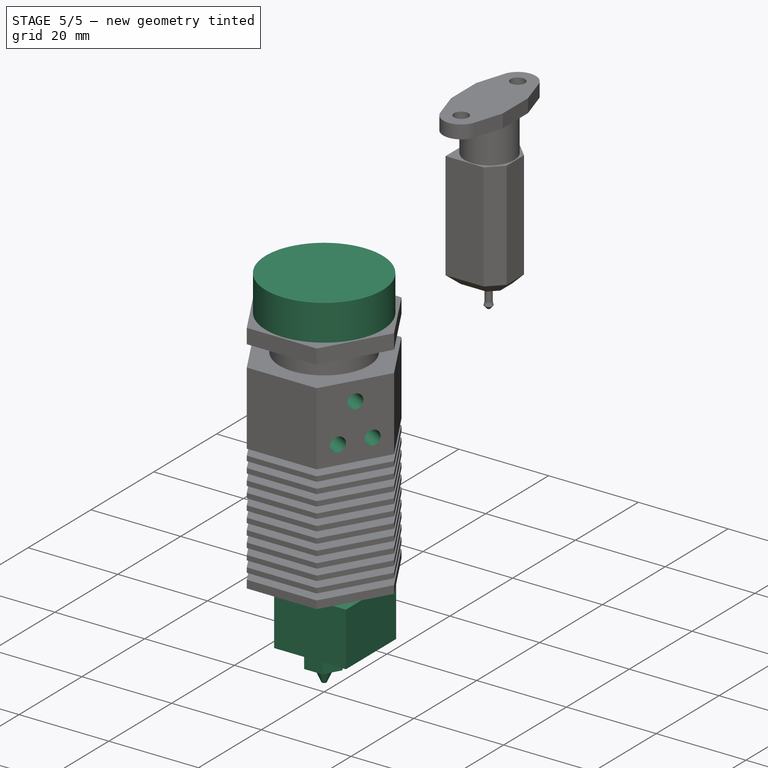
[diagram: stage 5 of 5 — iso view after this stage's code; geometry added in this stage tinted green]
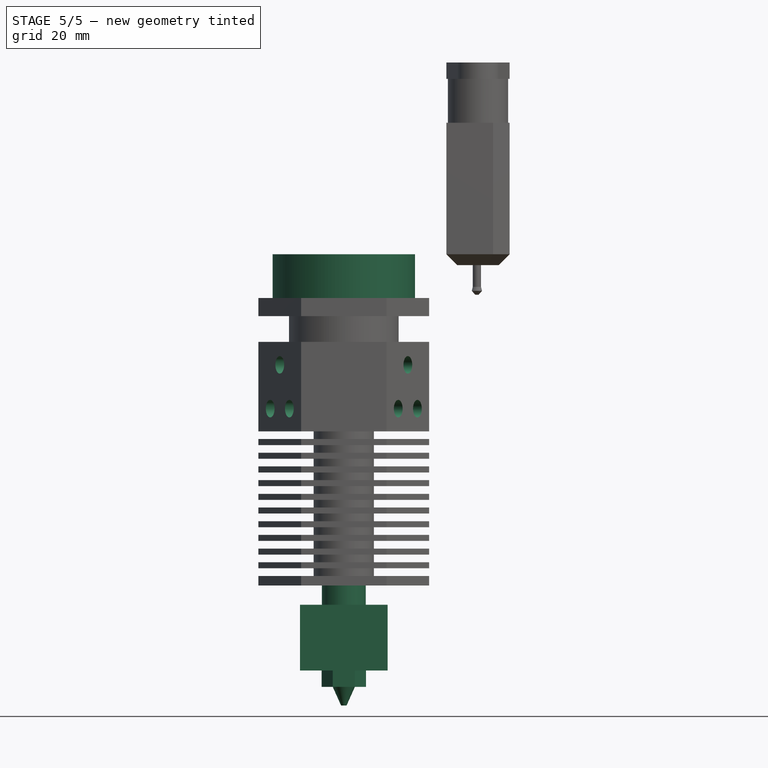
[diagram: stage 5 of 5 — front view after this stage's code; geometry added in this stage tinted green]
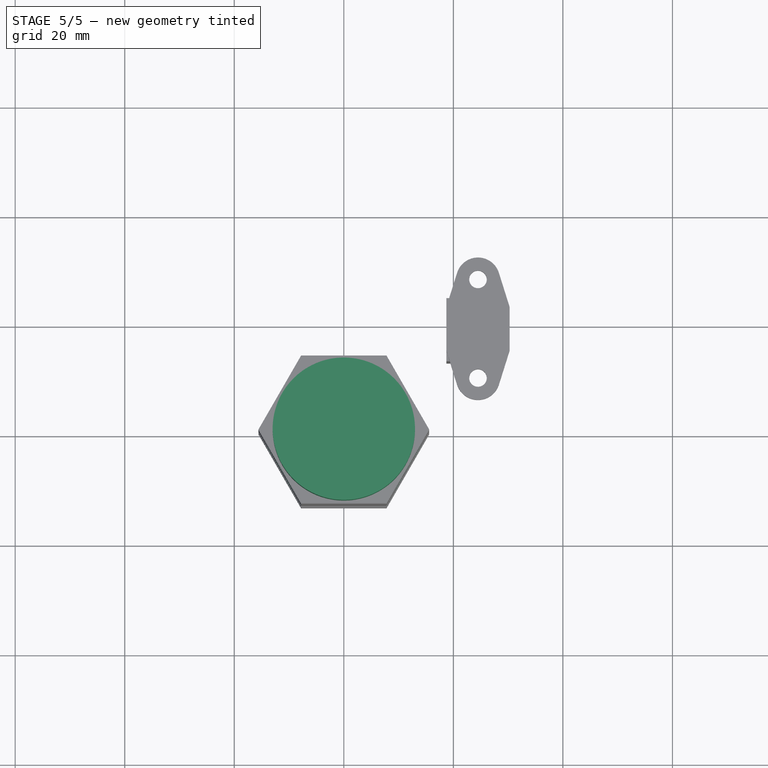
[diagram: stage 5 of 5 — top view after this stage's code; geometry added in this stage tinted green]
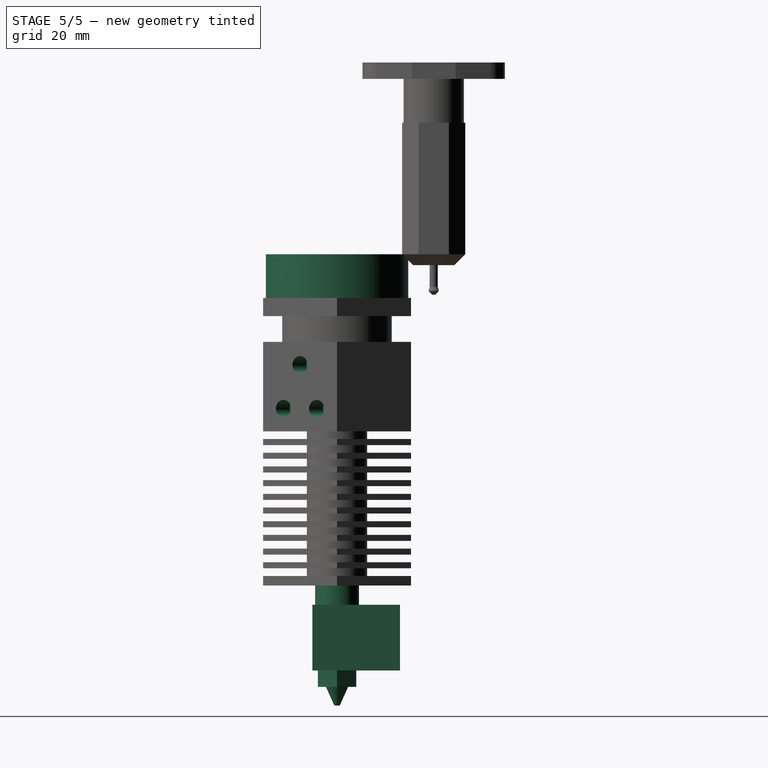
[diagram: stage 5 of 5 — right view after this stage's code; geometry added in this stage tinted green]
FEATURE [Sketcher::SketchObject] Sketch004
  ExternalGeometry = -> [Pocket002]
  FullyConstrained = true
  MapMode = 5
  Placement = pos=(-11.6913,-6.75,0) rot=(0.774597,-0.447214,-0.447214;1.82348rad)
  Support = -> [Pocket002]
  sketch-geometry (6):
    g0: LineSegment StartX=0 StartY=-12.2 StartZ=0 EndX=-3.5 EndY=-20.2 EndZ=0
    g1: LineSegment StartX=-3.5 StartY=-20.2 StartZ=0 EndX=3.5 EndY=-20.2 EndZ=0
    g2: LineSegment StartX=3.5 StartY=-20.2 StartZ=0 EndX=0 EndY=-12.2 EndZ=0
    g3: Circle CenterX=0 CenterY=-12.2 CenterZ=0 NormalX=0 NormalY=0 NormalZ=1 AngleXU=0 Radius=1.6
    g4: Circle CenterX=-3.5 CenterY=-20.2 CenterZ=0 NormalX=0 NormalY=0 NormalZ=1 AngleXU=0 Radius=1.6
    g5: Circle CenterX=3.5 CenterY=-20.2 CenterZ=0 NormalX=0 NormalY=0 NormalZ=1 AngleXU=0 Radius=1.6
  constraints (14):
    c: PointOnObject(g0,g-2)
    c: Coincident(g0,g1)
    c: Coincident(g1,g2)
    c: Coincident(g2,g0)
    c: Symmetric(g1,g0,g-2)
    c: Distance(g0,g-3) = 4.2
    c: DistanceX(g1,g1) = 7
    c: Distance(g0,g1) = 8
    c: Coincident(g3,g0)
    c: Coincident(g4,g0)
    c: Coincident(g5,g1)
    c: Equal(g3,g4)
    c: Equal(g4,g5)
    c: Radius(g3) = 1.6
FEATURE [PartDesign::Pocket] Pocket003
  BaseFeature = -> Pocket002
  Direction = (1,1,1)
  Length = 5
  Length2 = 100
  Profile = -> Sketch004
  Type = 0
FEATURE [Sketcher::SketchObject] Sketch005
  ExternalGeometry = -> [Pocket002]
  FullyConstrained = true
  MapMode = 5
  Placement = pos=(11.6913,-6.75,0) rot=(0.774597,0.447214,0.447214;1.82348rad)
  Support = -> [Pocket003]
  sketch-geometry (6):
    g0: LineSegment StartX=0 StartY=-12.2 StartZ=0 EndX=-3.5 EndY=-20.2 EndZ=0
    g1: LineSegment StartX=-3.5 StartY=-20.2 StartZ=0 EndX=3.5 EndY=-20.2 EndZ=0
    g2: LineSegment StartX=3.5 StartY=-20.2 StartZ=0 EndX=0 EndY=-12.2 EndZ=0
    g3: Circle CenterX=0 CenterY=-12.2 CenterZ=0 NormalX=0 NormalY=0 NormalZ=1 AngleXU=0 Radius=1.6
    g4: Circle CenterX=-3.5 CenterY=-20.2 CenterZ=0 NormalX=0 NormalY=0 NormalZ=1 AngleXU=0 Radius=1.6
    g5: Circle CenterX=3.5 CenterY=-20.2 CenterZ=0 NormalX=0 NormalY=0 NormalZ=1 AngleXU=0 Radius=1.6
  constraints (14):
    c: PointOnObject(g0,g-2)
    c: Coincident(g0,g1)
    c: Coincident(g1,g2)
    c: Coincident(g2,g0)
    c: Symmetric(g1,g0,g-2)
    c: Distance(g0,g-3) = 4.2
    c: DistanceX(g1,g1) = 7
    c: Distance(g0,g1) = 8
    c: Coincident(g3,g0)
    c: Coincident(g4,g0)
    c: Coincident(g5,g1)
    c: Equal(g3,g4)
    c: Equal(g4,g5)
    c: Radius(g3) = 1.6
FEATURE [PartDesign::Pocket] Pocket004
  BaseFeature = -> Pocket003
  Direction = (1,1,1)
  Length = 5
  Length2 = 100
  Profile = -> Sketch005
  Type = 0
FEATURE [Sketcher::SketchObject] Sketch006
  FullyConstrained = true
  MapMode = 5
  Placement = pos=(0,0,-52.5) rot=(1,0,0;3.14159rad)
  Support = -> [Pocket004]
  sketch-geometry (1):
    g0: Circle CenterX=0 CenterY=0 CenterZ=0 NormalX=0 NormalY=0 NormalZ=1 AngleXU=0 Radius=4
  constraints (2):
    c: Coincident(g0,g-1)
    c: Radius(g0) = 4
FEATURE [PartDesign::Pad] Pad001
  BaseFeature = -> Pocket004
  Direction = (1,1,1)
  Length = 3.5
  Length2 = 100
  Profile = -> Sketch006
  Type = 0
FEATURE [Sketcher::SketchObject] Sketch007
  FullyConstrained = true
  MapMode = 5
  Placement = pos=(0,0,-56) rot=(1,0,0;3.14159rad)
  Support = -> [Pad001]
  sketch-geometry (4):
    g0: LineSegment StartX=-8 StartY=4.5 StartZ=0 EndX=8 EndY=4.5 EndZ=0
    g1: LineSegment StartX=8 StartY=4.5 StartZ=0 EndX=8 EndY=-11.5 EndZ=0
    g2: LineSegment StartX=8 StartY=-11.5 StartZ=0 EndX=-8 EndY=-11.5 EndZ=0
    g3: LineSegment StartX=-8 StartY=-11.5 StartZ=0 EndX=-8 EndY=4.5 EndZ=0
  constraints (11):
    c: Coincident(g0,g1)
    c: Coincident(g1,g2)
    c: Coincident(g2,g3)
    c: Coincident(g3,g0)
    c: Horizontal(g2)
    c: Vertical(g1)
    c: Vertical(g3)
    c: Equal(g0,g1)
    c: DistanceX(g0,g0) = 16
    c: Symmetric(g0,g0,g-2)
    c: DistanceY(g-1,g0) = 4.5
FEATURE [PartDesign::Pad] Pad002
  BaseFeature = -> Pad001
  Direction = (1,1,1)
  Length = 12
  Length2 = 100
  Profile = -> Sketch007
  Type = 0
FEATURE [Sketcher::SketchObject] Sketch008
  FullyConstrained = true
  MapMode = 5
  Placement = pos=(0,0,-68) rot=(1,0,0;3.14159rad)
  Support = -> [Pad002]
  sketch-geometry (7):
    g0: LineSegment StartX=4.04145 StartY=0 StartZ=0 EndX=2.02073 EndY=3.5 EndZ=0
    g1: LineSegment StartX=2.02073 StartY=3.5 StartZ=0 EndX=-2.02073 EndY=3.5 EndZ=0
    g2: LineSegment StartX=-2.02073 StartY=3.5 StartZ=0 EndX=-4.04145 EndY=1.47127e-11 EndZ=0
    g3: LineSegment StartX=-4.04145 StartY=1.47127e-11 StartZ=0 EndX=-2.02073 EndY=-3.5 EndZ=0
    g4: LineSegment StartX=-2.02073 StartY=-3.5 StartZ=0 EndX=2.02073 EndY=-3.5 EndZ=0
    g5: LineSegment StartX=2.02073 StartY=-3.5 StartZ=0 EndX=4.04145 EndY=0 EndZ=0
    g6: Circle CenterX=0 CenterY=0 CenterZ=0 NormalX=0 NormalY=0 NormalZ=1 AngleXU=0 Radius=4.04145
  constraints (16):
    c: Coincident(g0,g1)
    c: Coincident(g1,g2)
    c: Coincident(g2,g3)
    c: Coincident(g3,g4)
    c: Coincident(g4,g5)
    c: Coincident(g5,g0)
    c: Equal(g0, g1-g5) x5
    c: PointOnObject(g0,g6)
    c: PointOnObject(g1,g6)
    c: PointOnObject(g2,g6)
    c: PointOnObject(g3,g6)
    c: PointOnObject(g4,g6)
    c: PointOnObject(g5,g6)
    c: Coincident(g6,g-1)
    c: PointOnObject(g5,g-1)
    c: Distance(g0,g4) = 7
FEATURE [PartDesign::Pad] Pad003
  BaseFeature = -> Pad002
  Direction = (1,1,1)
  Length = 3
  Length2 = 100
  Profile = -> Sketch008
  Type = 0
FEATURE [Sketcher::SketchObject] Sketch009
  ExternalGeometry = -> [Pad003]
  FullyConstrained = true
  MapMode = 5
  Placement = pos=(0,0,0) rot=(1,0,0;1.5708rad)
  Support = -> [XZ_Plane]
  sketch-geometry (4):
    g0: LineSegment StartX=2.02073 StartY=-71 StartZ=0 EndX=0 EndY=-71 EndZ=0
    g1: LineSegment StartX=0 StartY=-71 StartZ=0 EndX=0 EndY=-74.4 EndZ=0
    g2: LineSegment StartX=0 StartY=-74.4 StartZ=0 EndX=0.5 EndY=-74.4 EndZ=0
    g3: LineSegment StartX=0.5 StartY=-74.4 StartZ=0 EndX=2.02073 EndY=-71 EndZ=0
  constraints (11):
    c: PointOnObject(g1,g-2)
    c: PointOnObject(g0,g-3)
    c: Coincident(g0,g1)
    c: Vertical(g1)
    c: DistanceY(g-1,g1) = -74.4
    c: Coincident(g1,g2)
    c: Horizontal(g2)
    c: Coincident(g2,g3)
    c: Coincident(g3,g0)
    c: DistanceX(g2,g2) = 0.5
    c: Coincident(g0,g-3)
FEATURE [PartDesign::Revolution] Revolution
  Angle = 360
  Axis = (0,2e-16,1)
  Base = (0,0,0)
  BaseFeature = -> Pad003
  Midplane = true
  Profile = -> Sketch009
  ReferenceAxis = -> Sketch009 [V_Axis]
  Reversed = true
FEATURE [Sketcher::SketchObject] Sketch010
  FullyConstrained = true
  MapMode = 5
  Support = -> [Revolution]
  sketch-geometry (1):
    g0: Circle CenterX=0 CenterY=0 CenterZ=0 NormalX=0 NormalY=0 NormalZ=1 AngleXU=0 Radius=13
  constraints (2):
    c: Coincident(g0,g-1)
    c: Radius(g0) = 13
FEATURE [PartDesign::Pad] Pad004
  BaseFeature = -> Revolution
  Direction = (1,1,1)
  Length = 8
  Length2 = 100
  Profile = -> Sketch010
  Type = 0
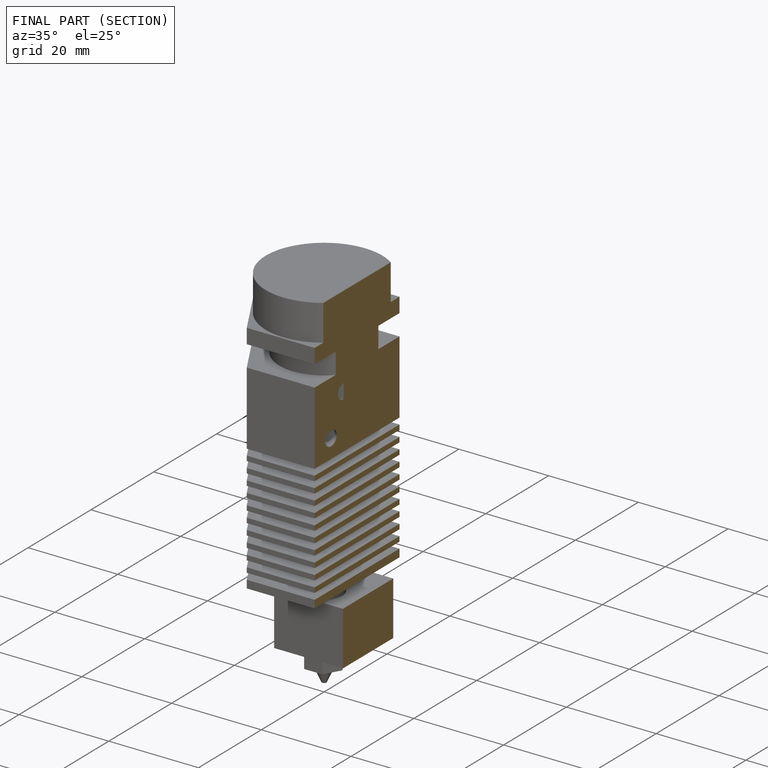
[diagram: finished part — half-section view (interior)]
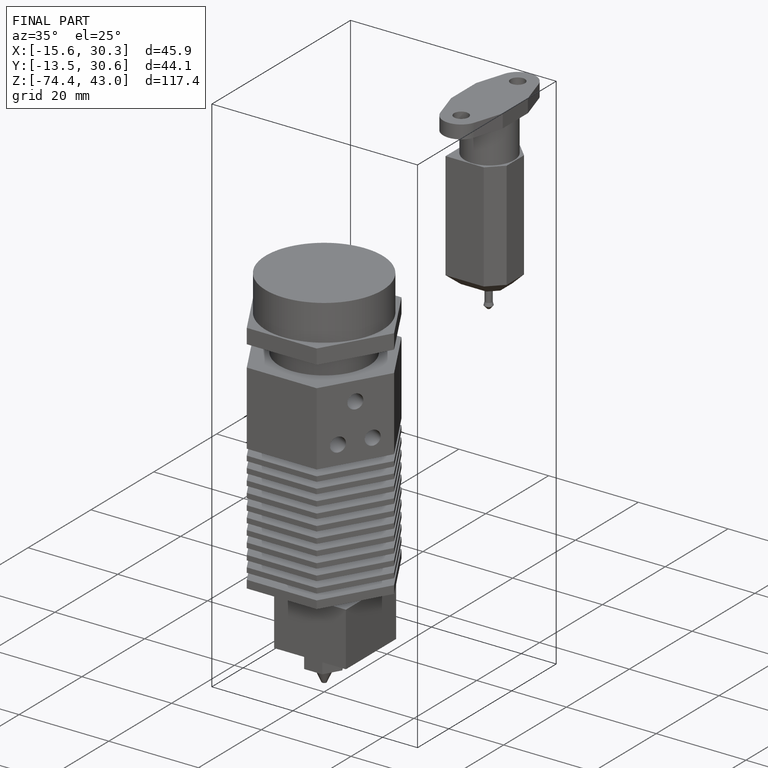
[diagram: finished part — iso view with bounding-box wireframe]
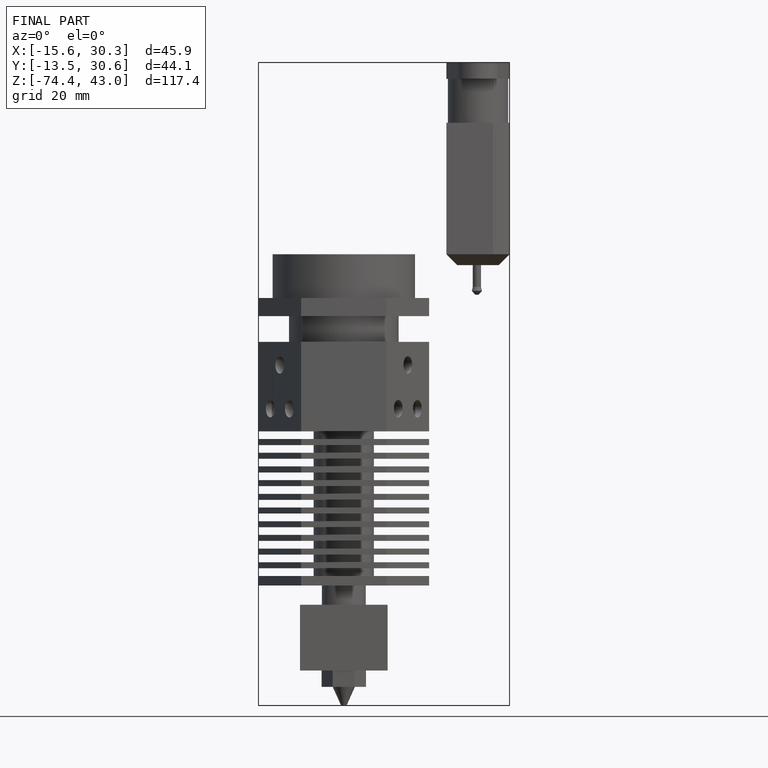
[diagram: finished part — front view with bounding-box wireframe]
